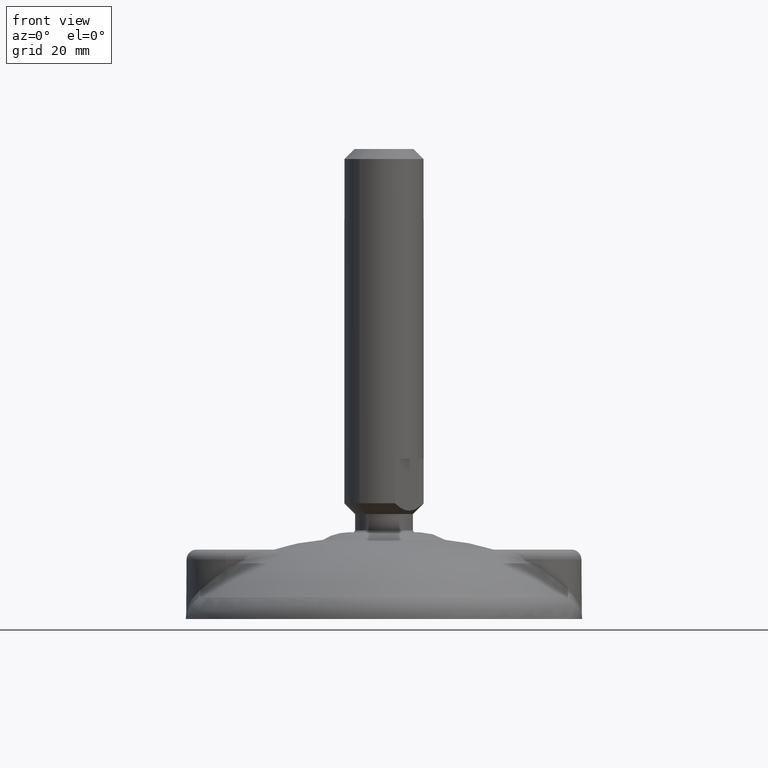
[diagram: clean part render]
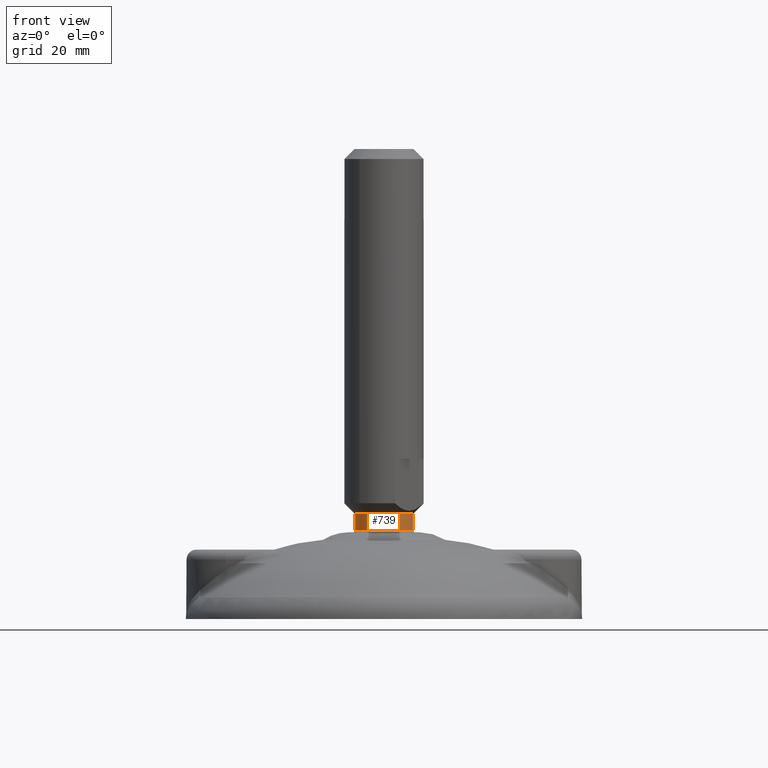
[diagram: same view with one face highlighted and labeled with its STEP entity id]
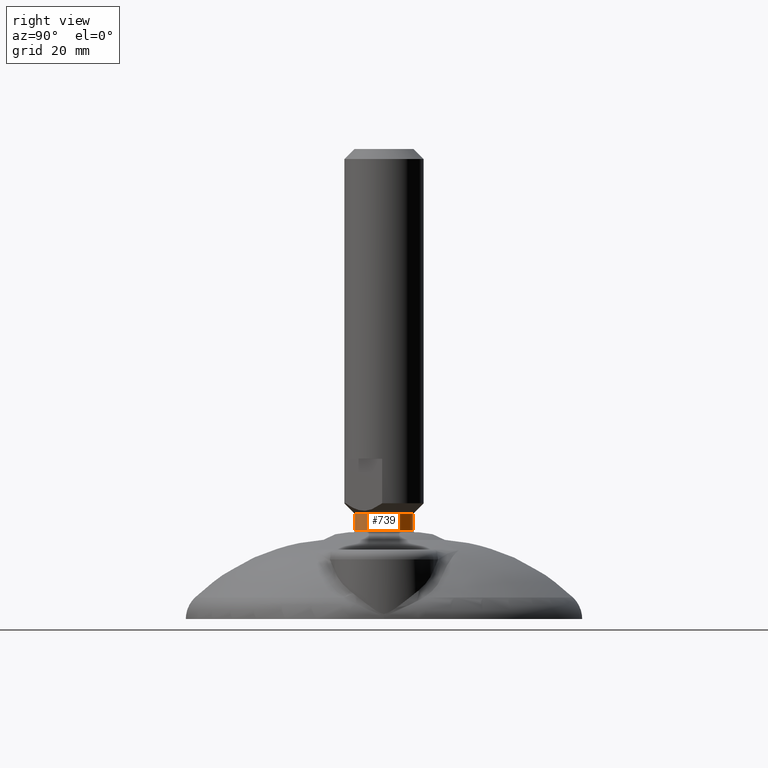
[diagram: same view with one face highlighted and labeled with its STEP entity id]
A machine part, front view. The second image highlights one B-rep face of the part: STEP entity #739.
A second angle (right view) of the same face is appended — the face is thin or edge-on in the first view.
In plain terms, the highlighted cylindrical surface (bore or boss wall) has radius 5.85 mm, axis along (0, 0, 1).
Its self-contained STEP definition (entity closure, byte-faithful):
#145=FACE_BOUND('',#271,.T.);
#158=CYLINDRICAL_SURFACE('',#823,5.85);
#208=FACE_OUTER_BOUND('',#270,.T.);
#270=EDGE_LOOP('',(#679));
#271=EDGE_LOOP('',(#680));
#318=CIRCLE('',#822,5.85);
#319=CIRCLE('',#824,5.85);
#384=VERTEX_POINT('',#1842);
#385=VERTEX_POINT('',#1845);
#484=EDGE_CURVE('',#384,#384,#318,.T.);
#485=EDGE_CURVE('',#385,#385,#319,.T.);
#679=ORIENTED_EDGE('',*,*,#485,.F.);
#680=ORIENTED_EDGE('',*,*,#484,.T.);
#739=ADVANCED_FACE('',(#208,#145),#158,.T.);
#822=AXIS2_PLACEMENT_3D('',#1843,#1005,#1006);
#823=AXIS2_PLACEMENT_3D('',#1844,#1007,#1008);
#824=AXIS2_PLACEMENT_3D('',#1846,#1009,#1010);
#1005=DIRECTION('center_axis',(0.,0.,-1.));
#1006=DIRECTION('ref_axis',(1.,0.,0.));
#1007=DIRECTION('center_axis',(0.,0.,-1.));
#1008=DIRECTION('ref_axis',(-1.,0.,0.));
#1009=DIRECTION('center_axis',(0.,0.,-1.));
#1010=DIRECTION('ref_axis',(1.,0.,0.));
#1842=CARTESIAN_POINT('',(-5.85,0.,5.5));
#1843=CARTESIAN_POINT('Origin',(0.,0.,5.5));
#1844=CARTESIAN_POINT('Origin',(0.,0.,3.825));
#1845=CARTESIAN_POINT('',(-5.85,0.,2.15));
#1846=CARTESIAN_POINT('Origin',(0.,0.,2.15));